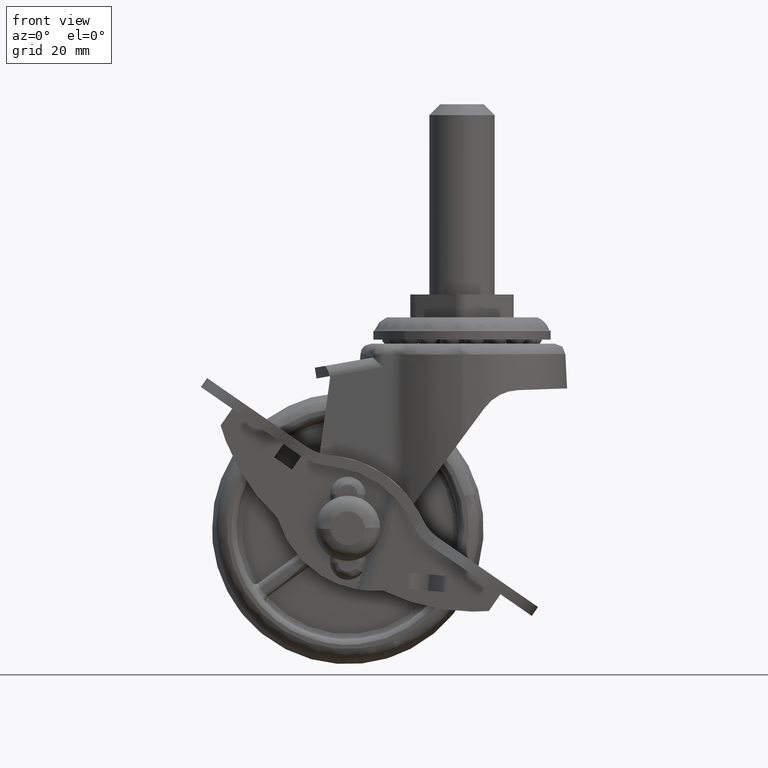
[diagram: clean part render]
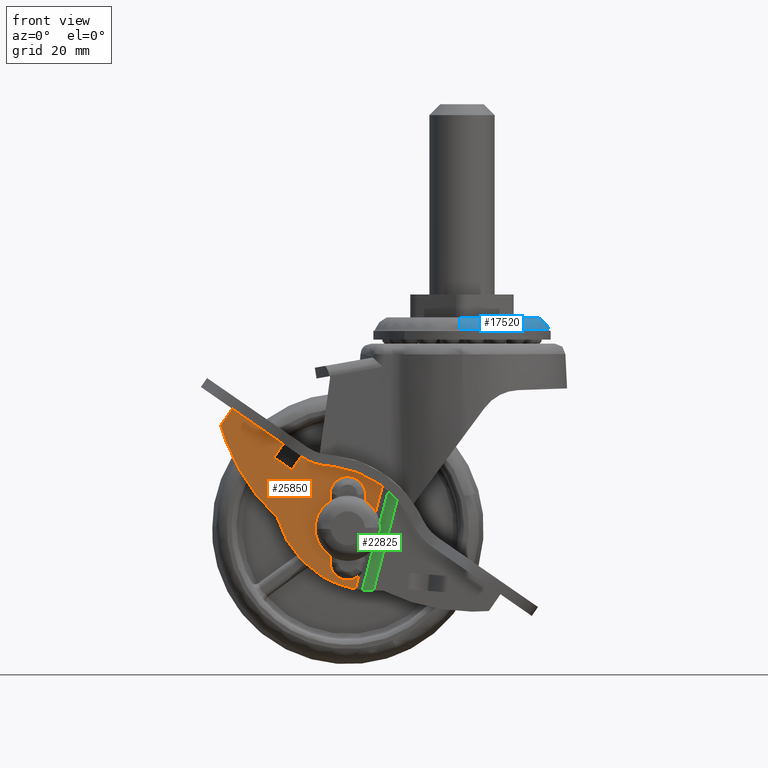
[diagram: same view with three faces highlighted in distinct colors, each labeled with its STEP entity id]
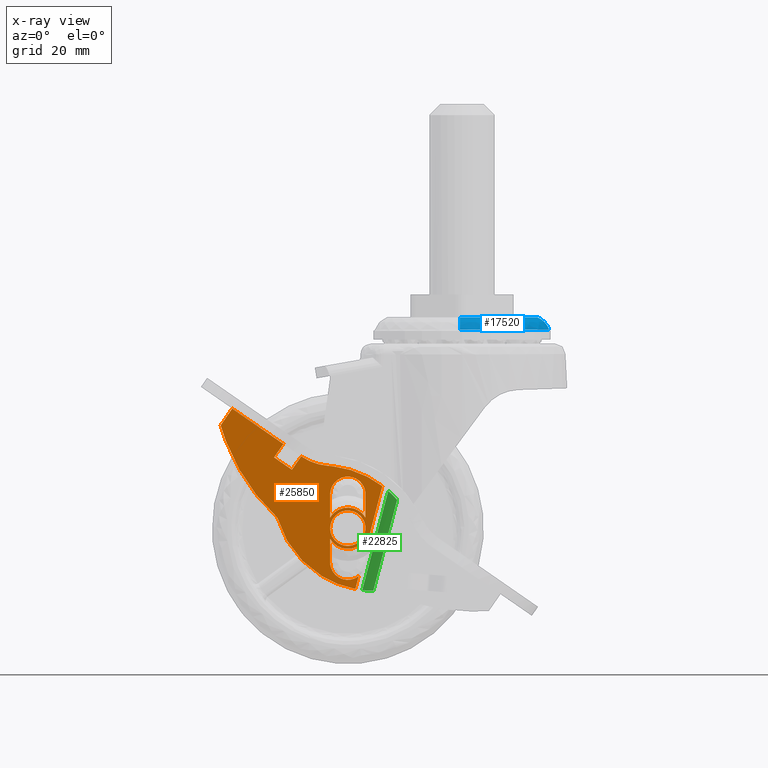
[diagram: x-ray of the same camera — body ghosted, the three highlighted faces saturated]
A machine part, front view with three faces highlighted in distinct colors.
The next image is the same camera in x-ray (body ghosted, the three faces saturated) — at least one of them is partly hidden behind the body in this view.
Their STEP definitions:

[orange] entity #25850 — the highlighted face is a freeform B-spline surface patch.
#21731=CARTESIAN_POINT('',(-3.249999999999683,-16.989471000000041,0.000001434072425));
#21732=VERTEX_POINT('',#21731);
#21733=CARTESIAN_POINT('',(-2.318064260003987,-16.989470999996140,2.277955314861285));
#21734=VERTEX_POINT('',#21733);
#21735=CARTESIAN_POINT('',(-3.249999999999683,-16.989471000000041,0.000001434072425));
#21736=CARTESIAN_POINT('',(-3.250149770230891,-16.989470999999501,0.341828322233897));
#21737=CARTESIAN_POINT('',(-3.151641758021249,-16.989470999998360,0.959652348047672));
#21738=CARTESIAN_POINT('',(-2.787998908860803,-16.989470999997099,1.725988788193895));
#21739=CARTESIAN_POINT('',(-2.474729241306285,-16.989470999996421,2.118564126031663));
#21740=CARTESIAN_POINT('',(-2.318064260003987,-16.989470999996140,2.277955314861285));
#21741=B_SPLINE_CURVE_WITH_KNOTS('',3,(#21735,#21736,#21737,#21738,#21739,#21740),.UNSPECIFIED.,.F.,.U.,(4,1,1,4),(0.000000031141536,1.025462756209612,1.853706615271792,2.524196560372880),.UNSPECIFIED.);
#21742=EDGE_CURVE('',#21732,#21734,#21741,.T.);
#21744=CARTESIAN_POINT('',(0.0,-16.989471000000052,-3.250000000000000));
#21745=VERTEX_POINT('',#21744);
#21746=CARTESIAN_POINT('',(0.0,-16.989471000000052,-3.250000000000000));
#21747=CARTESIAN_POINT('',(-0.226007202909472,-16.989471000000041,-3.250034205985885));
#21748=CARTESIAN_POINT('',(-0.678008218576828,-16.989471000000069,-3.202662403353478));
#21749=CARTESIAN_POINT('',(-1.339355952335010,-16.989471000000030,-2.988716760063773));
#21750=CARTESIAN_POINT('',(-1.894025222777177,-16.989471000000059,-2.665398121763664));
#21751=CARTESIAN_POINT('',(-2.446592588320915,-16.989471000000069,-2.182941733391070));
#21752=CARTESIAN_POINT('',(-2.895340978826434,-16.989470999999970,-1.562134503519022));
#21753=CARTESIAN_POINT('',(-3.189262832695877,-16.989471000000201,-0.771060788130494));
#21754=CARTESIAN_POINT('',(-3.250044530674223,-16.989470999999909,-0.252593121452557));
#21755=CARTESIAN_POINT('',(-3.249999999999683,-16.989471000000041,0.000001434072425));
#21756=B_SPLINE_CURVE_WITH_KNOTS('',3,(#21746,#21747,#21748,#21749,#21750,#21751,#21752,#21753,#21754,#21755),.UNSPECIFIED.,.F.,.U.,(4,1,1,1,1,1,1,4),(0.000000129370047,0.678019199275020,1.356048237003243,2.073982142894212,2.592404649134515,3.549646142508785,4.347339296994332,5.105120902629034),.UNSPECIFIED.);
#21757=EDGE_CURVE('',#21745,#21732,#21756,.T.);
#21759=CARTESIAN_POINT('',(3.249999999999684,-16.989471000000052,-0.000001434072399));
#21760=VERTEX_POINT('',#21759);
#21761=CARTESIAN_POINT('',(3.249999999999684,-16.989471000000052,-0.000001434072399));
#21762=CARTESIAN_POINT('',(3.250033823019082,-16.989471000000059,-0.226008311012028));
#21763=CARTESIAN_POINT('',(3.202667080359144,-16.989471000000059,-0.678012101676012));
#21764=CARTESIAN_POINT('',(3.017498844624941,-16.989471000000030,-1.250312567331307));
#21765=CARTESIAN_POINT('',(2.750469105238141,-16.989471000000052,-1.757256986323837));
#21766=CARTESIAN_POINT('',(2.341640664781820,-16.989471000000069,-2.301801448019117));
#21767=CARTESIAN_POINT('',(1.735518755671747,-16.989470999999980,-2.792976025465650));
#21768=CARTESIAN_POINT('',(0.903933491906148,-16.989471000000069,-3.161494207358599));
#21769=CARTESIAN_POINT('',(0.332379328553145,-16.989471000000020,-3.250172667539434));
#21770=CARTESIAN_POINT('',(0.0,-16.989471000000052,-3.250000000000000));
#21771=B_SPLINE_CURVE_WITH_KNOTS('',3,(#21761,#21762,#21763,#21764,#21765,#21766,#21767,#21768,#21769,#21770),.UNSPECIFIED.,.F.,.U.,(4,1,1,1,1,1,1,4),(0.000000129867743,0.678018984727341,1.356047808072209,1.794779228739509,2.393045484090334,3.390108104189914,4.108033973416271,5.105119286085069),.UNSPECIFIED.);
#21772=EDGE_CURVE('',#21760,#21745,#21771,.T.);
#21774=CARTESIAN_POINT('',(2.277954807908361,-16.989471000004070,2.318063753030608));
#21775=VERTEX_POINT('',#21774);
#21776=CARTESIAN_POINT('',(2.277954807908361,-16.989471000004070,2.318063753030608));
#21777=CARTESIAN_POINT('',(2.421776461522527,-16.989471000003860,2.176745588850765));
#21778=CARTESIAN_POINT('',(2.717870041769893,-16.989471000003221,1.825992514556024));
#21779=CARTESIAN_POINT('',(3.125734474565214,-16.989471000001760,1.061701257844340));
#21780=CARTESIAN_POINT('',(3.250394876505300,-16.989471000000840,0.403330812976672));
#21781=CARTESIAN_POINT('',(3.249999999999684,-16.989471000000052,-0.000001434072399));
#21782=B_SPLINE_CURVE_WITH_KNOTS('',3,(#21776,#21777,#21778,#21779,#21780,#21781),.UNSPECIFIED.,.F.,.U.,(4,1,1,4),(0.000000034788954,0.604903724968166,1.371110952516426,2.580923548914604),.UNSPECIFIED.);
#21783=EDGE_CURVE('',#21775,#21760,#21782,.T.);
#21865=CARTESIAN_POINT('',(0.0,-16.989471000000052,3.250000000000000));
#21866=VERTEX_POINT('',#21865);
#21867=CARTESIAN_POINT('',(-2.318064260003987,-16.989470999996140,2.277955314861285));
#21868=CARTESIAN_POINT('',(-2.157913063355064,-16.989470999996421,2.440961675125404));
#21869=CARTESIAN_POINT('',(-1.761312385955296,-16.989470999997049,2.767389113566346));
#21870=CARTESIAN_POINT('',(-0.981210443619269,-16.989470999998520,3.147129779288942));
#21871=CARTESIAN_POINT('',(-0.349509668112570,-16.989470999999270,3.250163971869655));
#21872=CARTESIAN_POINT('',(0.0,-16.989471000000052,3.250000000000000));
#21873=B_SPLINE_CURVE_WITH_KNOTS('',3,(#21867,#21868,#21869,#21870,#21871,#21872),.UNSPECIFIED.,.F.,.U.,(4,1,1,4),(0.000000034780115,0.685557794689229,1.532414239412906,2.580922393239074),.UNSPECIFIED.);
#21874=EDGE_CURVE('',#21734,#21866,#21873,.T.);
#21898=CARTESIAN_POINT('',(0.0,-16.989471000000052,3.250000000000000));
#21899=CARTESIAN_POINT('',(0.223498036063009,-16.989471000000439,3.250034043015949));
#21900=CARTESIAN_POINT('',(0.657310919116544,-16.989471000001220,3.205052891882052));
#21901=CARTESIAN_POINT('',(1.464147840804860,-16.989471000002599,2.952629699859360));
#21902=CARTESIAN_POINT('',(1.987486324385905,-16.989471000003562,2.604044886948842));
#21903=CARTESIAN_POINT('',(2.277954807908361,-16.989471000004070,2.318063753030608));
#21904=B_SPLINE_CURVE_WITH_KNOTS('',3,(#21898,#21899,#21900,#21901,#21902,#21903),.UNSPECIFIED.,.F.,.U.,(4,1,1,4),(0.000000031132674,0.670490281558227,1.301520337034859,2.524197709819502),.UNSPECIFIED.);
#21905=EDGE_CURVE('',#21866,#21775,#21904,.T.);
#22918=CARTESIAN_POINT('',(6.664715304236610,-16.989471000000052,-6.088141933433670));
#22919=VERTEX_POINT('',#22918);
#22929=CARTESIAN_POINT('',(7.508466707686120,-16.989471000000052,-8.406329862044352));
#22930=VERTEX_POINT('',#22929);
#22931=CARTESIAN_POINT('',(7.508466707686120,-16.989471000000052,-8.406329862044352));
#22932=CARTESIAN_POINT('',(6.664715304236610,-16.989471000000052,-6.088141933433670));
#22933=QUASI_UNIFORM_CURVE('',1,(#22931,#22932),.UNSPECIFIED.,.F.,.U.);
#22934=EDGE_CURVE('',#22930,#22919,#22933,.T.);
#22962=CARTESIAN_POINT('',(0.815642088030353,-16.989471000000052,9.982054652829950));
#22963=VERTEX_POINT('',#22962);
#22977=CARTESIAN_POINT('',(5.000062013443310,-16.989471000000052,-1.514544605758140));
#22978=VERTEX_POINT('',#22977);
#22979=CARTESIAN_POINT('',(5.000062013443310,-16.989471000000052,-1.514544605758140));
#22980=CARTESIAN_POINT('',(0.815642088030353,-16.989471000000052,9.982054652829950));
#22981=QUASI_UNIFORM_CURVE('',1,(#22979,#22980),.UNSPECIFIED.,.F.,.U.);
#22982=EDGE_CURVE('',#22978,#22963,#22981,.T.);
#23488=CARTESIAN_POINT('',(-1.552189676534410,-16.989471000000052,-3.468530987040480));
#23489=VERTEX_POINT('',#23488);
#23490=CARTESIAN_POINT('',(3.793037918834310,-16.989471000000052,0.229920304203573));
#23491=VERTEX_POINT('',#23490);
#23492=CARTESIAN_POINT('',(-1.552189676534410,-16.989471000000052,-3.468530987040480));
#23493=CARTESIAN_POINT('',(-1.329768302779109,-16.989471000000041,-3.568084958425528));
#23494=CARTESIAN_POINT('',(-0.788349109006374,-16.989471000000069,-3.750273546422405));
#23495=CARTESIAN_POINT('',(0.169161306876412,-16.989471000000009,-3.846652887895443));
#23496=CARTESIAN_POINT('',(1.078624179669552,-16.989471000000041,-3.680714879861583));
#23497=CARTESIAN_POINT('',(1.880999292087728,-16.989471000000140,-3.329056164131883));
#23498=CARTESIAN_POINT('',(2.435539967345496,-16.989470999999849,-2.945382087302935));
#23499=CARTESIAN_POINT('',(2.965961664907564,-16.989471000000179,-2.410433476840720));
#23500=CARTESIAN_POINT('',(3.390928372787526,-16.989471000000169,-1.785028417176966));
#23501=CARTESIAN_POINT('',(3.747777705354297,-16.989471000000041,-0.871289825861729));
#23502=CARTESIAN_POINT('',(3.817850045177188,-16.989471000000009,-0.175496875518182));
#23503=CARTESIAN_POINT('',(3.793037918834310,-16.989471000000052,0.229920304203573));
#23504=B_SPLINE_CURVE_WITH_KNOTS('',3,(#23492,#23493,#23494,#23495,#23496,#23497,#23498,#23499,#23500,#23501,#23502,#23503),.UNSPECIFIED.,.F.,.U.,(4,1,1,1,1,1,1,1,1,4),(0.000000184416288,0.731069407348007,1.705840624814956,2.863401038727734,3.472640242488766,4.325482959096471,4.873802535030221,5.726750072089648,6.579691497414487,7.798127829815797),.UNSPECIFIED.);
#23505=EDGE_CURVE('',#23489,#23491,#23504,.T.);
#23608=CARTESIAN_POINT('',(1.552189676533845,-16.989471000000052,3.468530987040730));
#23609=VERTEX_POINT('',#23608);
#23610=CARTESIAN_POINT('',(-3.793037918834270,-16.989471000000052,-0.229920304204245));
#23611=VERTEX_POINT('',#23610);
#23612=CARTESIAN_POINT('',(1.552189676533845,-16.989471000000052,3.468530987040730));
#23613=CARTESIAN_POINT('',(1.292713032627742,-16.989471000000052,3.584707024942583));
#23614=CARTESIAN_POINT('',(0.825399107291908,-16.989471000000052,3.733564053030426));
#23615=CARTESIAN_POINT('',(0.096920537517739,-16.989471000000041,3.818566480352671));
#23616=CARTESIAN_POINT('',(-0.636216341678508,-16.989471000000059,3.774419460007126));
#23617=CARTESIAN_POINT('',(-1.522921622516513,-16.989470999999991,3.530502553575678));
#23618=CARTESIAN_POINT('',(-2.372141378759869,-16.989471000000080,3.029340730372248));
#23619=CARTESIAN_POINT('',(-3.023765952284209,-16.989471000000041,2.350548698261468));
#23620=CARTESIAN_POINT('',(-3.396145753429770,-16.989471000000041,1.741276108695560));
#23621=CARTESIAN_POINT('',(-3.650455919043741,-16.989471000000059,1.119742173936150));
#23622=CARTESIAN_POINT('',(-3.793054150349300,-16.989471000000059,0.482131672661948));
#23623=CARTESIAN_POINT('',(-3.806567170545244,-16.989471000000041,-0.006960985848379));
#23624=CARTESIAN_POINT('',(-3.793037918834270,-16.989471000000052,-0.229920304204245));
#23625=B_SPLINE_CURVE_WITH_KNOTS('',3,(#23612,#23613,#23614,#23615,#23616,#23617,#23618,#23619,#23620,#23621,#23622,#23623,#23624),.UNSPECIFIED.,.F.,.U.,(4,1,1,1,1,1,1,1,1,1,4),(0.000000184416462,0.852889758785079,1.462150142462634,2.193225276617085,3.046161907447875,4.203671540856554,5.117500380974806,5.848595939195225,6.335993152907885,7.128009736544980,7.798127829815846),.UNSPECIFIED.);
#23626=EDGE_CURVE('',#23609,#23611,#23625,.T.);
#23740=CARTESIAN_POINT('',(-0.883589366974245,-16.989471000000052,6.988867564245870));
#23741=VERTEX_POINT('',#23740);
#23753=CARTESIAN_POINT('',(-5.405428815874242,-16.989471000000052,7.812255712437755));
#23754=VERTEX_POINT('',#23753);
#23755=CARTESIAN_POINT('',(-5.405428815874242,-16.989471000000052,7.812255712437755));
#23756=CARTESIAN_POINT('',(-5.132190811225957,-16.989471000000041,8.001495305562836));
#23757=CARTESIAN_POINT('',(-4.587526025655080,-16.989471000000069,8.265606044047917));
#23758=CARTESIAN_POINT('',(-3.796201381325263,-16.989471000000052,8.406091382228643));
#23759=CARTESIAN_POINT('',(-3.169189049182831,-16.989470999999991,8.381579731823523));
#23760=CARTESIAN_POINT('',(-2.594897791816051,-16.989471000000130,8.262369799876778));
#23761=CARTESIAN_POINT('',(-1.937581060412929,-16.989470999999881,7.998026019758656));
#23762=CARTESIAN_POINT('',(-1.331364703681003,-16.989471000000272,7.552075617394035));
#23763=CARTESIAN_POINT('',(-0.997051968280584,-16.989470999999892,7.152852674561827));
#23764=CARTESIAN_POINT('',(-0.883589366974245,-16.989471000000052,6.988867564245870));
#23765=B_SPLINE_CURVE_WITH_KNOTS('',3,(#23755,#23756,#23757,#23758,#23759,#23760,#23761,#23762,#23763,#23764),.UNSPECIFIED.,.F.,.U.,(4,1,1,1,1,1,1,4),(0.000000129619419,0.997086369200804,1.794779514232843,2.393045865306549,2.871602512847026,3.549645582748589,4.506868524729482,5.105120098190698),.UNSPECIFIED.);
#23766=EDGE_CURVE('',#23754,#23741,#23765,.T.);
#23768=CARTESIAN_POINT('',(-6.228816962342700,-16.989471000000052,3.290416273001330));
#23769=VERTEX_POINT('',#23768);
#23770=CARTESIAN_POINT('',(-6.228816962342700,-16.989471000000052,3.290416273001330));
#23771=CARTESIAN_POINT('',(-6.357441024454628,-16.989471000000080,3.476252191384790));
#23772=CARTESIAN_POINT('',(-6.575646207342746,-16.989471000000030,3.874905629725666));
#23773=CARTESIAN_POINT('',(-6.806997281042916,-16.989471000000069,4.642889580648410));
#23774=CARTESIAN_POINT('',(-6.828100792451824,-16.989471000000030,5.383074321601169));
#23775=CARTESIAN_POINT('',(-6.678920642373567,-16.989471000000059,6.100957725916897));
#23776=CARTESIAN_POINT('',(-6.434482789170940,-16.989471000000020,6.708611275185223));
#23777=CARTESIAN_POINT('',(-6.004955524012351,-16.989471000000218,7.323585205847608));
#23778=CARTESIAN_POINT('',(-5.613173695207951,-16.989470999999821,7.668567278770419));
#23779=CARTESIAN_POINT('',(-5.405428815874242,-16.989471000000052,7.812255712437755));
#23780=B_SPLINE_CURVE_WITH_KNOTS('',3,(#23770,#23771,#23772,#23773,#23774,#23775,#23776,#23777,#23778,#23779),.UNSPECIFIED.,.F.,.U.,(4,1,1,1,1,1,1,4),(0.000000129621196,0.678019091493423,1.356048021521417,2.393045861707189,2.871602508526853,3.549645577413189,4.347338605001180,5.105120090523410),.UNSPECIFIED.);
#23781=EDGE_CURVE('',#23769,#23754,#23780,.T.);
#23848=CARTESIAN_POINT('',(0.883589366974013,-16.989471000000052,-6.988867564246049));
#23849=VERTEX_POINT('',#23848);
#23850=CARTESIAN_POINT('',(6.664715304236610,-16.989471000000052,-6.088141933433670));
#23851=CARTESIAN_POINT('',(6.559797674666099,-16.989471000000069,-6.432779312613612));
#23852=CARTESIAN_POINT('',(6.285048275260678,-16.989471000000030,-6.983114389973578));
#23853=CARTESIAN_POINT('',(5.756031223954267,-16.989471000000041,-7.559551273440659));
#23854=CARTESIAN_POINT('',(5.251046213705373,-16.989471000000052,-7.932265140241447));
#23855=CARTESIAN_POINT('',(4.653954155837145,-16.989471000000030,-8.228781655386527));
#23856=CARTESIAN_POINT('',(3.965580451417589,-16.989471000000140,-8.392390295794939));
#23857=CARTESIAN_POINT('',(3.279873217443514,-16.989470999999970,-8.396292278140887));
#23858=CARTESIAN_POINT('',(2.699177767551724,-16.989471000000059,-8.291844516738310));
#23859=CARTESIAN_POINT('',(2.091932624480156,-16.989471000000080,-8.068190909653172));
#23860=CARTESIAN_POINT('',(1.445764289788379,-16.989471000000002,-7.660377355238304));
#23861=CARTESIAN_POINT('',(1.056104175629727,-16.989471000000030,-7.238394682786766));
#23862=CARTESIAN_POINT('',(0.883589366974013,-16.989471000000052,-6.988867564246049));
#23863=B_SPLINE_CURVE_WITH_KNOTS('',3,(#23850,#23851,#23852,#23853,#23854,#23855,#23856,#23857,#23858,#23859,#23860,#23861,#23862),.UNSPECIFIED.,.F.,.U.,(4,1,1,1,1,1,1,1,1,1,4),(0.000000236420701,1.080690433271740,1.820151167373419,2.332072272935229,2.957781381366960,3.810889836398129,4.436610676038829,5.005396479291741,5.574209609615480,6.370556065057755,7.280599935537476),.UNSPECIFIED.);
#23864=EDGE_CURVE('',#22919,#23849,#23863,.T.);
#24123=CARTESIAN_POINT('',(-14.569419320445260,-16.989471000000052,2.997964345777360));
#24124=VERTEX_POINT('',#24123);
#24125=CARTESIAN_POINT('',(-14.569091242136169,-16.989471000000020,5.999478335217590));
#24126=VERTEX_POINT('',#24125);
#24127=CARTESIAN_POINT('',(-14.569419320445260,-16.989471000000052,2.997964345777360));
#24128=CARTESIAN_POINT('',(-14.569091242136169,-16.989471000000020,5.999478335217590));
#24129=QUASI_UNIFORM_CURVE('',1,(#24127,#24128),.UNSPECIFIED.,.F.,.U.);
#24130=EDGE_CURVE('',#24124,#24126,#24129,.T.);
#24157=CARTESIAN_POINT('',(-18.569471977187298,-16.989471000000052,2.998246973405190));
#24158=VERTEX_POINT('',#24157);
#24159=CARTESIAN_POINT('',(-18.569471977187298,-16.989471000000052,2.998246973405190));
#24160=CARTESIAN_POINT('',(-14.569419320445260,-16.989471000000052,2.997964345777360));
#24161=QUASI_UNIFORM_CURVE('',1,(#24159,#24160),.UNSPECIFIED.,.F.,.U.);
#24162=EDGE_CURVE('',#24158,#24124,#24161,.T.);
#24185=CARTESIAN_POINT('',(-18.569259931980550,-16.989471000000052,5.999340671428090));
#24186=VERTEX_POINT('',#24185);
#24187=CARTESIAN_POINT('',(-18.569259931980550,-16.989471000000052,5.999340671428090));
#24188=CARTESIAN_POINT('',(-18.569471977187298,-16.989471000000052,2.998246973405190));
#24189=QUASI_UNIFORM_CURVE('',1,(#24187,#24188),.UNSPECIFIED.,.F.,.U.);
#24190=EDGE_CURVE('',#24186,#24158,#24189,.T.);
#25034=CARTESIAN_POINT('',(-9.462802097301159,-16.989471000000002,7.401633879143710));
#25035=VERTEX_POINT('',#25034);
#25036=CARTESIAN_POINT('',(-14.569091242136169,-16.989471000000020,5.999478335217590));
#25037=CARTESIAN_POINT('',(-13.787513069185900,-16.989471000000052,5.999325720062276));
#25038=CARTESIAN_POINT('',(-12.754855597119390,-16.989471000000030,6.121288548120521));
#25039=CARTESIAN_POINT('',(-11.032976242371699,-16.989471000000002,6.601851824112477));
#25040=CARTESIAN_POINT('',(-10.110714537914181,-16.989471000000059,7.016657371061892));
#25041=CARTESIAN_POINT('',(-9.462802097301159,-16.989471000000002,7.401633879143710));
#25042=B_SPLINE_CURVE_WITH_KNOTS('',3,(#25036,#25037,#25038,#25039,#25040,#25041),.UNSPECIFIED.,.F.,.U.,(4,1,1,4),(0.000000010445770,2.344664802144202,3.098287635454658,5.359208058399479),.UNSPECIFIED.);
#25043=EDGE_CURVE('',#24126,#25035,#25042,.T.);
#25212=CARTESIAN_POINT('',(-11.749795573588500,-16.989471000000052,-5.785714534481719));
#25213=VERTEX_POINT('',#25212);
#25214=CARTESIAN_POINT('',(-11.749795573588500,-16.989471000000052,-5.785714534481719));
#25215=CARTESIAN_POINT('',(-11.009233984890811,-16.989471000000059,-6.395482137869384));
#25216=CARTESIAN_POINT('',(-9.520432910120199,-16.989471000000002,-7.437933852528595));
#25217=CARTESIAN_POINT('',(-6.797264967940598,-16.989471000000080,-8.800573959362781));
#25218=CARTESIAN_POINT('',(-3.927809855102533,-16.989471000000041,-9.673240899962808));
#25219=CARTESIAN_POINT('',(-0.639339563013316,-16.989471000000041,-10.077326599676880));
#25220=CARTESIAN_POINT('',(2.141487109735274,-16.989471000000009,-9.948294767603292));
#25221=CARTESIAN_POINT('',(4.967743561081917,-16.989471000000211,-9.381929377963290));
#25222=CARTESIAN_POINT('',(6.583203097105843,-16.989470999999799,-8.817699890421075));
#25223=CARTESIAN_POINT('',(7.508466707686120,-16.989471000000052,-8.406329862044352));
#25224=B_SPLINE_CURVE_WITH_KNOTS('',3,(#25214,#25215,#25216,#25217,#25218,#25219,#25220,#25221,#25222,#25223),.UNSPECIFIED.,.F.,.U.,(4,1,1,1,1,1,1,4),(0.000000018793195,2.877882632493044,5.436002570789610,9.113315699182216,11.831294139497450,15.348708939048290,17.427180837679860,20.464945245716269),.UNSPECIFIED.);
#25225=EDGE_CURVE('',#25213,#22930,#25224,.T.);
#25275=CARTESIAN_POINT('',(-27.500289451744202,-16.989471000000052,0.378052560637286));
#25276=VERTEX_POINT('',#25275);
#25277=CARTESIAN_POINT('',(-27.500289451744202,-16.989471000000052,0.378052560637286));
#25278=CARTESIAN_POINT('',(-26.583895209103328,-16.989471000000091,-0.249538955252117));
#25279=CARTESIAN_POINT('',(-24.090990336572968,-16.989470999999980,-1.798909116921049));
#25280=CARTESIAN_POINT('',(-20.259998754014660,-16.989471000000059,-3.596731075809937));
#25281=CARTESIAN_POINT('',(-15.902358689386361,-16.989471000000052,-5.013534362364335));
#25282=CARTESIAN_POINT('',(-13.200425557576780,-16.989471000000059,-5.573117250450628));
#25283=CARTESIAN_POINT('',(-11.749795573588500,-16.989471000000052,-5.785714534481719));
#25284=B_SPLINE_CURVE_WITH_KNOTS('',3,(#25277,#25278,#25279,#25280,#25281,#25282,#25283),.UNSPECIFIED.,.F.,.U.,(4,1,1,1,4),(3.354401E-009,3.332100741385762,8.796747438657906,12.661987061508610,17.060361565700649),.UNSPECIFIED.);
#25285=EDGE_CURVE('',#25276,#25213,#25284,.T.);
#25321=CARTESIAN_POINT('',(-8.656828741628171,-16.989471000000052,7.853536327718770));
#25322=VERTEX_POINT('',#25321);
#25323=CARTESIAN_POINT('',(-8.656828741628171,-16.989471000000052,7.853536327718770));
#25324=CARTESIAN_POINT('',(-8.929185628318324,-16.989471000000091,7.709631667164098));
#25325=CARTESIAN_POINT('',(-9.197955652893509,-16.989471000000080,7.558934152519332));
#25326=CARTESIAN_POINT('',(-9.462802097301159,-16.989471000000002,7.401633879143710));
#25327=B_SPLINE_CURVE_WITH_KNOTS('',3,(#25323,#25324,#25325,#25326),.UNSPECIFIED.,.F.,.U.,(4,4),(4.545830E-011,0.924114996230783),.UNSPECIFIED.);
#25328=EDGE_CURVE('',#25322,#25035,#25327,.T.);
#25352=CARTESIAN_POINT('',(0.815642088030353,-16.989471000000052,9.982054652829950));
#25353=CARTESIAN_POINT('',(-0.257740466632921,-16.989471000000041,10.029412694614461));
#25354=CARTESIAN_POINT('',(-2.156168736416593,-16.989471000000030,9.947667039696315));
#25355=CARTESIAN_POINT('',(-5.374860825555585,-16.989471000000030,9.308008627469418));
#25356=CARTESIAN_POINT('',(-7.435540313470503,-16.989471000000101,8.499141171914554));
#25357=CARTESIAN_POINT('',(-8.656828741628171,-16.989471000000052,7.853536327718770));
#25358=B_SPLINE_CURVE_WITH_KNOTS('',3,(#25352,#25353,#25354,#25355,#25356,#25357),.UNSPECIFIED.,.F.,.U.,(4,1,1,4),(6.300537E-009,3.223277073334995,5.679093772327954,9.823309404906752),.UNSPECIFIED.);
#25359=EDGE_CURVE('',#22963,#25322,#25358,.T.);
#25653=CARTESIAN_POINT('',(-30.000215558649298,-16.989471000000052,5.998947281750390));
#25654=VERTEX_POINT('',#25653);
#25660=CARTESIAN_POINT('',(-18.569259931980550,-16.989471000000052,5.999340671428090));
#25661=CARTESIAN_POINT('',(-30.000215558649298,-16.989471000000052,5.998947281750390));
#25662=QUASI_UNIFORM_CURVE('',1,(#25660,#25661),.UNSPECIFIED.,.F.,.U.);
#25663=EDGE_CURVE('',#24186,#25654,#25662,.T.);
#25748=CARTESIAN_POINT('',(-30.000087675152901,-16.989471000000052,2.247514721408825));
#25749=VERTEX_POINT('',#25748);
#25757=CARTESIAN_POINT('',(-30.000087675152901,-16.989471000000052,2.247514721408825));
#25758=CARTESIAN_POINT('',(-29.193242762699430,-16.989471000000020,1.590035329349363));
#25759=CARTESIAN_POINT('',(-28.359012184321308,-16.989471000000059,0.966162801199365));
#25760=CARTESIAN_POINT('',(-27.500289451744202,-16.989471000000052,0.378052560637286));
#25761=B_SPLINE_CURVE_WITH_KNOTS('',3,(#25757,#25758,#25759,#25760),.UNSPECIFIED.,.F.,.U.,(4,4),(8.639489E-011,3.122423703924274),.UNSPECIFIED.);
#25762=EDGE_CURVE('',#25749,#25276,#25761,.T.);
#25775=CARTESIAN_POINT('',(-30.000215558649298,-16.989471000000052,5.998947281750390));
#25776=CARTESIAN_POINT('',(-30.000087675152901,-16.989471000000052,2.247514721408825));
#25777=QUASI_UNIFORM_CURVE('',1,(#25775,#25776),.UNSPECIFIED.,.F.,.U.);
#25778=EDGE_CURVE('',#25654,#25749,#25777,.T.);
#25795=CARTESIAN_POINT('',(-31.873774165153659,-16.989471000000002,10.998210741197910));
#25796=CARTESIAN_POINT('',(9.382026320251727,-16.989471000000002,10.998210741197910));
#25797=CARTESIAN_POINT('',(-31.873774165153659,-16.989471000000002,-10.997423103952480));
#25798=CARTESIAN_POINT('',(9.382026320251727,-16.989471000000002,-10.997423103952480));
#25799=B_SPLINE_SURFACE_WITH_KNOTS('',1,1,((#25795,#25797),(#25796,#25798)),.UNSPECIFIED.,.F.,.F.,.U.,(2,2),(2,2),(0.0,41.255800485405381),(0.0,21.995633845150390),.UNSPECIFIED.);
#25800=ORIENTED_EDGE('',*,*,#25225,.T.);
#25801=ORIENTED_EDGE('',*,*,#22934,.T.);
#25802=ORIENTED_EDGE('',*,*,#23864,.T.);
#25803=CARTESIAN_POINT('',(-1.552189676534410,-16.989471000000052,-3.468530987040480));
#25804=CARTESIAN_POINT('',(0.883589366974013,-16.989471000000052,-6.988867564246049));
#25805=QUASI_UNIFORM_CURVE('',1,(#25803,#25804),.UNSPECIFIED.,.F.,.U.);
#25806=EDGE_CURVE('',#23489,#23849,#25805,.T.);
#25807=ORIENTED_EDGE('',*,*,#25806,.F.);
#25808=ORIENTED_EDGE('',*,*,#23505,.T.);
#25809=CARTESIAN_POINT('',(5.000062013443310,-16.989471000000052,-1.514544605758140));
#25810=CARTESIAN_POINT('',(3.793037918834310,-16.989471000000052,0.229920304203573));
#25811=QUASI_UNIFORM_CURVE('',1,(#25809,#25810),.UNSPECIFIED.,.F.,.U.);
#25812=EDGE_CURVE('',#22978,#23491,#25811,.T.);
#25813=ORIENTED_EDGE('',*,*,#25812,.F.);
#25814=ORIENTED_EDGE('',*,*,#22982,.T.);
#25815=ORIENTED_EDGE('',*,*,#25359,.T.);
#25816=ORIENTED_EDGE('',*,*,#25328,.T.);
#25817=ORIENTED_EDGE('',*,*,#25043,.F.);
#25818=ORIENTED_EDGE('',*,*,#24130,.F.);
#25819=ORIENTED_EDGE('',*,*,#24162,.F.);
#25820=ORIENTED_EDGE('',*,*,#24190,.F.);
#25821=ORIENTED_EDGE('',*,*,#25663,.T.);
#25822=ORIENTED_EDGE('',*,*,#25778,.T.);
#25823=ORIENTED_EDGE('',*,*,#25762,.T.);
#25824=ORIENTED_EDGE('',*,*,#25285,.T.);
#25825=EDGE_LOOP('',(#25800,#25801,#25802,#25807,#25808,#25813,#25814,#25815,#25816,#25817,#25818,#25819,#25820,#25821,#25822,#25823,#25824));
#25826=FACE_OUTER_BOUND('',#25825,.T.);
#25827=CARTESIAN_POINT('',(-6.228816962342700,-16.989471000000052,3.290416273001330));
#25828=CARTESIAN_POINT('',(-3.793037918834270,-16.989471000000052,-0.229920304204245));
#25829=QUASI_UNIFORM_CURVE('',1,(#25827,#25828),.UNSPECIFIED.,.F.,.U.);
#25830=EDGE_CURVE('',#23769,#23611,#25829,.T.);
#25831=ORIENTED_EDGE('',*,*,#25830,.F.);
#25832=ORIENTED_EDGE('',*,*,#23781,.T.);
#25833=ORIENTED_EDGE('',*,*,#23766,.T.);
#25834=CARTESIAN_POINT('',(1.552189676533845,-16.989471000000052,3.468530987040730));
#25835=CARTESIAN_POINT('',(-0.883589366974245,-16.989471000000052,6.988867564245870));
#25836=QUASI_UNIFORM_CURVE('',1,(#25834,#25835),.UNSPECIFIED.,.F.,.U.);
#25837=EDGE_CURVE('',#23609,#23741,#25836,.T.);
#25838=ORIENTED_EDGE('',*,*,#25837,.F.);
#25839=ORIENTED_EDGE('',*,*,#23626,.T.);
#25840=EDGE_LOOP('',(#25831,#25832,#25833,#25838,#25839));
#25841=FACE_BOUND('',#25840,.T.);
#25842=ORIENTED_EDGE('',*,*,#21772,.T.);
#25843=ORIENTED_EDGE('',*,*,#21757,.T.);
#25844=ORIENTED_EDGE('',*,*,#21742,.T.);
#25845=ORIENTED_EDGE('',*,*,#21874,.T.);
#25846=ORIENTED_EDGE('',*,*,#21905,.T.);
#25847=ORIENTED_EDGE('',*,*,#21783,.T.);
#25848=EDGE_LOOP('',(#25842,#25843,#25844,#25845,#25846,#25847));
#25849=FACE_BOUND('',#25848,.T.);
#25850=ADVANCED_FACE('',(#25826,#25841,#25849),#25799,.F.);

[blue] entity #17520 — the highlighted face is a freeform B-spline surface patch.
#17301=CARTESIAN_POINT('',(37.008056826228128,-0.402411081778265,36.512264993669909));
#17302=VERTEX_POINT('',#17301);
#17310=CARTESIAN_POINT('',(20.597588918292661,-16.008056826229531,36.512264993671153));
#17311=VERTEX_POINT('',#17310);
#17312=CARTESIAN_POINT('',(37.008056826228128,-0.402411081778265,36.512264993669909));
#17313=CARTESIAN_POINT('',(36.980210200193092,-1.515629891545428,36.512264993669959));
#17314=CARTESIAN_POINT('',(36.699469615870612,-3.670814272655593,36.512264993670072));
#17315=CARTESIAN_POINT('',(35.798631931449407,-6.284344617858289,36.512264993670307));
#17316=CARTESIAN_POINT('',(34.666188537239009,-8.431339930627480,36.512264993670172));
#17317=CARTESIAN_POINT('',(33.398207167184736,-10.229566631660891,36.512264993670833));
#17318=CARTESIAN_POINT('',(31.783861220069479,-11.912763374883029,36.512264993669561));
#17319=CARTESIAN_POINT('',(29.842083331152629,-13.426327402247299,36.512264993671188));
#17320=CARTESIAN_POINT('',(27.889792316718680,-14.515036455961299,36.512264993670449));
#17321=CARTESIAN_POINT('',(25.808224892922880,-15.316500139451970,36.512264993671522));
#17322=CARTESIAN_POINT('',(23.483377379410051,-15.897432606662040,36.512264993669334));
#17323=CARTESIAN_POINT('',(21.678064192785222,-16.035386464275561,36.512264993673362));
#17324=CARTESIAN_POINT('',(20.597588918292661,-16.008056826229531,36.512264993671153));
#17325=B_SPLINE_CURVE_WITH_KNOTS('',3,(#17312,#17313,#17314,#17315,#17316,#17317,#17318,#17319,#17320,#17321,#17322,#17323,#17324),.UNSPECIFIED.,.F.,.U.,(4,1,1,1,1,1,1,1,1,1,4),(0.000000060140149,3.340679227601559,6.484857454650381,8.253453934404256,10.611590680136940,13.067966770662480,15.229584914320929,17.980731927729060,19.749334631171688,21.910954462222911,25.153379071162760),.UNSPECIFIED.);
#17326=EDGE_CURVE('',#17302,#17311,#17325,.T.);
#17394=CARTESIAN_POINT('',(20.653204732017610,-13.795639832037899,38.799995048496037));
#17395=VERTEX_POINT('',#17394);
#17396=CARTESIAN_POINT('',(20.653204732017610,-13.795639832037899,38.799995048496037));
#17397=CARTESIAN_POINT('',(20.645838590986809,-14.088667560105369,38.699723742888622));
#17398=CARTESIAN_POINT('',(20.632956106563540,-14.601137404175850,38.443850040149108));
#17399=CARTESIAN_POINT('',(20.617725266692592,-15.207025670088090,37.926999478062271));
#17400=CARTESIAN_POINT('',(20.605499794722078,-15.693359325458150,37.297817769865141));
#17401=CARTESIAN_POINT('',(20.599863132524369,-15.917587768328559,36.808546900202892));
#17402=CARTESIAN_POINT('',(20.597588918292661,-16.008056826229531,36.512264993671153));
#17403=B_SPLINE_CURVE_WITH_KNOTS('',3,(#17396,#17397,#17398,#17399,#17400,#17401,#17402),.UNSPECIFIED.,.F.,.U.,(4,1,1,1,4),(0.000000053991760,0.929366381854081,1.703813203115908,2.375041104764961,3.304407432626359),.UNSPECIFIED.);
#17404=EDGE_CURVE('',#17395,#17311,#17403,.T.);
#17458=CARTESIAN_POINT('',(34.795639831986023,-0.346795267959699,38.799995048513999));
#17459=VERTEX_POINT('',#17458);
#17467=CARTESIAN_POINT('',(34.795639831986023,-0.346795267959699,38.799995048513999));
#17468=CARTESIAN_POINT('',(35.170118245520662,-0.356208919112369,38.671981859183532));
#17469=CARTESIAN_POINT('',(35.798031617366078,-0.371993426891234,38.328707168072690));
#17470=CARTESIAN_POINT('',(36.570417755052411,-0.391409695949659,37.530068132708557));
#17471=CARTESIAN_POINT('',(36.892567544956059,-0.399507908316762,36.890891371561409));
#17472=CARTESIAN_POINT('',(37.008056826228128,-0.402411081778265,36.512264993669909));
#17473=B_SPLINE_CURVE_WITH_KNOTS('',3,(#17467,#17468,#17469,#17470,#17471,#17472),.UNSPECIFIED.,.F.,.U.,(4,1,1,4),(0.000000053993610,1.187524952089398,2.116882534595603,3.304407432691011),.UNSPECIFIED.);
#17474=EDGE_CURVE('',#17459,#17302,#17473,.T.);
#17483=CARTESIAN_POINT('',(34.645093114802066,-0.343010818800726,38.847794694595201));
#17484=CARTESIAN_POINT('',(34.302082296001331,-13.988103933602783,38.847794694595216));
#17485=CARTESIAN_POINT('',(20.656989181199279,-13.645093114802060,38.847794694595201));
#17486=CARTESIAN_POINT('',(36.555391267348448,-0.391031959290243,38.288413084611065));
#17487=CARTESIAN_POINT('',(36.164359308058188,-15.946423226638689,38.288413084611093));
#17488=CARTESIAN_POINT('',(20.608968040709755,-15.555391267348446,38.288413084611065));
#17489=CARTESIAN_POINT('',(37.050866542372468,-0.403487233750565,36.359993533496116));
#17490=CARTESIAN_POINT('',(36.647379308621915,-16.454353776123046,36.359993533496123));
#17491=CARTESIAN_POINT('',(20.596512766249433,-16.050866542372479,36.359993533496116));
#17499=(BOUNDED_SURFACE()B_SPLINE_SURFACE(2,2,((#17483,#17486,#17489),(#17484,#17487,#17490),(#17485,#17488,#17491)),.UNSPECIFIED.,.F.,.F.,.U.)B_SPLINE_SURFACE_WITH_KNOTS((3,3),(3,3),(0.0,26.602347745272251),(0.0,3.703514199021622),.UNSPECIFIED.)GEOMETRIC_REPRESENTATION_ITEM()RATIONAL_B_SPLINE_SURFACE(((0.927139731757602,0.805385820665158,0.926038355841806),(0.655586791433277,0.569493775263826,0.654808001054582),(0.927139731757602,0.805385820665158,0.926038355841806)))REPRESENTATION_ITEM('')SURFACE());
#17500=ORIENTED_EDGE('',*,*,#17326,.F.);
#17501=ORIENTED_EDGE('',*,*,#17474,.F.);
#17502=CARTESIAN_POINT('',(34.795639831986023,-0.346795267959699,38.799995048513999));
#17503=CARTESIAN_POINT('',(34.773061531216257,-1.249722539377816,38.799995043056100));
#17504=CARTESIAN_POINT('',(34.553112413839663,-3.022903077439400,38.799995033371466));
#17505=CARTESIAN_POINT('',(33.758739532213937,-5.447883020937852,38.799995023033297));
#17506=CARTESIAN_POINT('',(32.589203247320881,-7.616696585189108,38.799995016488133));
#17507=CARTESIAN_POINT('',(31.030388377363700,-9.599281112849635,38.799995013390628));
#17508=CARTESIAN_POINT('',(29.186873760460941,-11.197469801266941,38.799995014346088));
#17509=CARTESIAN_POINT('',(27.341227283367829,-12.302077354805849,38.799995018372158));
#17510=CARTESIAN_POINT('',(25.394350277916999,-13.142467466833111,38.799995024629737));
#17511=CARTESIAN_POINT('',(23.196530145333011,-13.705962845738441,38.799995034078478));
#17512=CARTESIAN_POINT('',(21.471475448797460,-13.816259678678220,38.799995043551228));
#17513=CARTESIAN_POINT('',(20.653204732017610,-13.795639832037899,38.799995048496037));
#17514=B_SPLINE_CURVE_WITH_KNOTS('',3,(#17502,#17503,#17504,#17505,#17506,#17507,#17508,#17509,#17510,#17511,#17512,#17513),.UNSPECIFIED.,.F.,.U.,(4,1,1,1,1,1,1,1,1,4),(0.000000064783581,2.709607191308315,5.334579110938787,7.620830423944573,10.076434205953561,12.870708330864360,14.902941369087200,16.511794632729430,19.221423510564470,21.677020219954969),.UNSPECIFIED.);
#17515=EDGE_CURVE('',#17459,#17395,#17514,.T.);
#17516=ORIENTED_EDGE('',*,*,#17515,.T.);
#17517=ORIENTED_EDGE('',*,*,#17404,.T.);
#17518=EDGE_LOOP('',(#17500,#17501,#17516,#17517));
#17519=FACE_OUTER_BOUND('',#17518,.T.);
#17520=ADVANCED_FACE('',(#17519),#17499,.T.);

[green] entity #22825 — the highlighted face is a freeform B-spline surface patch.
#22753=CARTESIAN_POINT('',(10.780049362644300,-18.488442974926659,-7.575257695221374));
#22754=CARTESIAN_POINT('',(4.007266218714092,-18.488442974926659,11.032811059589759));
#22755=CARTESIAN_POINT('',(9.600300229410596,-18.521318425463342,-8.004651263619795));
#22756=CARTESIAN_POINT('',(2.827517085480382,-18.521318425463342,10.603417491191340));
#22757=CARTESIAN_POINT('',(8.750387867192961,-17.649984013853999,-8.313994065201889));
#22758=CARTESIAN_POINT('',(1.977604723262746,-17.649984013853999,10.294074689609250));
#22766=(BOUNDED_SURFACE()B_SPLINE_SURFACE(1,2,((#22753,#22755,#22757),(#22754,#22756,#22758)),.UNSPECIFIED.,.F.,.F.,.U.)B_SPLINE_SURFACE_WITH_KNOTS((2,2),(3,3),(0.0,19.802293157573541),(0.0,2.410438343664265),.UNSPECIFIED.)GEOMETRIC_REPRESENTATION_ITEM()RATIONAL_B_SPLINE_SURFACE(((1.0,0.921513369271984,0.998008557449114),(1.0,0.921513369271984,0.998008557449114)))REPRESENTATION_ITEM('')SURFACE());
#22767=CARTESIAN_POINT('',(10.410555777574400,-18.489471000000002,-6.789691243544641));
#22768=VERTEX_POINT('',#22767);
#22769=CARTESIAN_POINT('',(8.662843600346339,-17.722808380413198,-7.844414140692190));
#22770=VERTEX_POINT('',#22769);
#22771=CARTESIAN_POINT('',(10.410555777574400,-18.489471000000002,-6.789691243544641));
#22772=CARTESIAN_POINT('',(10.255633593572680,-18.489471000000030,-6.895274925428842));
#22773=CARTESIAN_POINT('',(10.101411871255429,-18.473097664510242,-6.996931923781188));
#22774=CARTESIAN_POINT('',(9.871267997255943,-18.424414552917909,-7.143876243317306));
#22775=CARTESIAN_POINT('',(9.794754591646248,-18.404142382869349,-7.191931644020333));
#22776=CARTESIAN_POINT('',(9.680333407649618,-18.367502455879929,-7.262648481377817));
#22777=CARTESIAN_POINT('',(9.642251385755928,-18.354248979920960,-7.285992913981138));
#22778=CARTESIAN_POINT('',(9.566214819695237,-18.325614122669339,-7.332228223050812));
#22779=CARTESIAN_POINT('',(9.528217400249606,-18.310208113345091,-7.355143757982035));
#22780=CARTESIAN_POINT('',(9.340542196418667,-18.228614916187940,-7.467426753498080));
#22781=CARTESIAN_POINT('',(9.196224768542926,-18.148324495405479,-7.550883160223572));
#22782=CARTESIAN_POINT('',(8.988833387115029,-18.005667476190961,-7.667460411967233));
#22783=CARTESIAN_POINT('',(8.921226651849720,-17.954389784179501,-7.704877706891311));
#22784=CARTESIAN_POINT('',(8.789244067764958,-17.844161202310580,-7.776904460791119));
#22785=CARTESIAN_POINT('',(8.724786768174107,-17.785093846210870,-7.811553997792178));
#22786=CARTESIAN_POINT('',(8.662843600346371,-17.722808380413149,-7.844414140692170));
#22787=B_SPLINE_CURVE_WITH_KNOTS('',3,(#22771,#22772,#22773,#22774,#22775,#22776,#22777,#22778,#22779,#22780,#22781,#22782,#22783,#22784,#22785,#22786),.UNSPECIFIED.,.F.,.U.,(4,2,2,2,2,2,2,4),(0.0,0.249999999999997,0.374999999999997,0.437499999999997,0.499999999999996,0.749999999999998,0.874999999999999,1.0),.UNSPECIFIED.);
#22788=EDGE_CURVE('',#22768,#22770,#22787,.T.);
#22789=ORIENTED_EDGE('',*,*,#22788,.F.);
#22790=CARTESIAN_POINT('',(4.501612351026160,-18.489470999999948,9.444997393731420));
#22791=VERTEX_POINT('',#22790);
#22792=CARTESIAN_POINT('',(4.501612351026160,-18.489470999999948,9.444997393731420));
#22793=CARTESIAN_POINT('',(10.410555777574400,-18.489471000000002,-6.789691243544641));
#22794=QUASI_UNIFORM_CURVE('',1,(#22792,#22793),.UNSPECIFIED.,.F.,.U.);
#22795=EDGE_CURVE('',#22791,#22768,#22794,.T.);
#22796=ORIENTED_EDGE('',*,*,#22795,.F.);
#22797=CARTESIAN_POINT('',(2.216411101661975,-17.722808380413252,9.867013585481390));
#22798=VERTEX_POINT('',#22797);
#22799=CARTESIAN_POINT('',(2.216411101661975,-17.722808380413252,9.867013585481390));
#22800=CARTESIAN_POINT('',(2.379169894590308,-17.853967238751661,9.847408994368282));
#22801=CARTESIAN_POINT('',(2.551635528516519,-17.966619725748451,9.824440918731689));
#22802=CARTESIAN_POINT('',(2.822961394375466,-18.111088708805202,9.783995124948886));
#22803=CARTESIAN_POINT('',(2.915525651565702,-18.155127501858161,9.769512680429275));
#22804=CARTESIAN_POINT('',(3.057445218024308,-18.215172713318530,9.746152024113844));
#22805=CARTESIAN_POINT('',(3.105264707917833,-18.234184184452591,9.738092164603820));
#22806=CARTESIAN_POINT('',(3.201920053619307,-18.270210650293599,9.721401844170494));
#22807=CARTESIAN_POINT('',(3.250824946007961,-18.287243228642929,9.712758041309154));
#22808=CARTESIAN_POINT('',(3.495648999514464,-18.366739148382219,9.668459375005634));
#22809=CARTESIAN_POINT('',(3.694020285843895,-18.412977763500209,9.629304973153118));
#22810=CARTESIAN_POINT('',(3.994759583965027,-18.459022984605639,9.564663417850170));
#22811=CARTESIAN_POINT('',(4.095541245162283,-18.470459857856230,9.542130746751468));
#22812=CARTESIAN_POINT('',(4.298127361433599,-18.485691681568841,9.495030128539307));
#22813=CARTESIAN_POINT('',(4.400036369830414,-18.489471000000009,9.470432319019594));
#22814=CARTESIAN_POINT('',(4.501612351026160,-18.489471000000002,9.444997393731409));
#22815=B_SPLINE_CURVE_WITH_KNOTS('',3,(#22799,#22800,#22801,#22802,#22803,#22804,#22805,#22806,#22807,#22808,#22809,#22810,#22811,#22812,#22813,#22814),.UNSPECIFIED.,.F.,.U.,(4,2,2,2,2,2,2,4),(0.0,0.249999999999999,0.374999999999998,0.437499999999998,0.499999999999998,0.749999999999999,0.874999999999999,1.0),.UNSPECIFIED.);
#22816=EDGE_CURVE('',#22798,#22791,#22815,.T.);
#22817=ORIENTED_EDGE('',*,*,#22816,.F.);
#22818=CARTESIAN_POINT('',(8.662843600346339,-17.722808380413198,-7.844414140692190));
#22819=CARTESIAN_POINT('',(2.216411101661975,-17.722808380413252,9.867013585481390));
#22820=QUASI_UNIFORM_CURVE('',1,(#22818,#22819),.UNSPECIFIED.,.F.,.U.);
#22821=EDGE_CURVE('',#22770,#22798,#22820,.T.);
#22822=ORIENTED_EDGE('',*,*,#22821,.F.);
#22823=EDGE_LOOP('',(#22789,#22796,#22817,#22822));
#22824=FACE_OUTER_BOUND('',#22823,.T.);
#22825=ADVANCED_FACE('',(#22824),#22766,.T.);